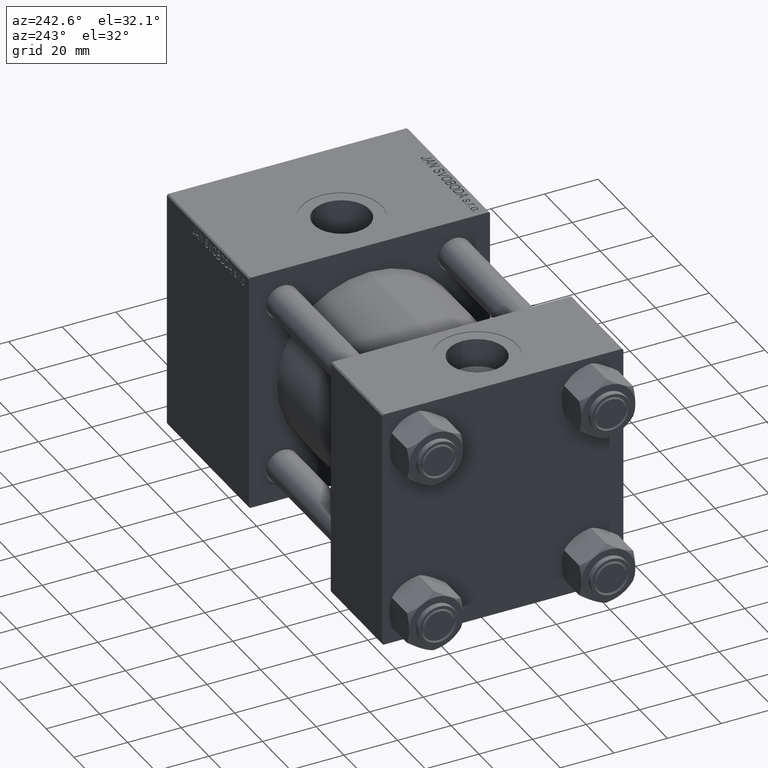
[diagram: clean part render]
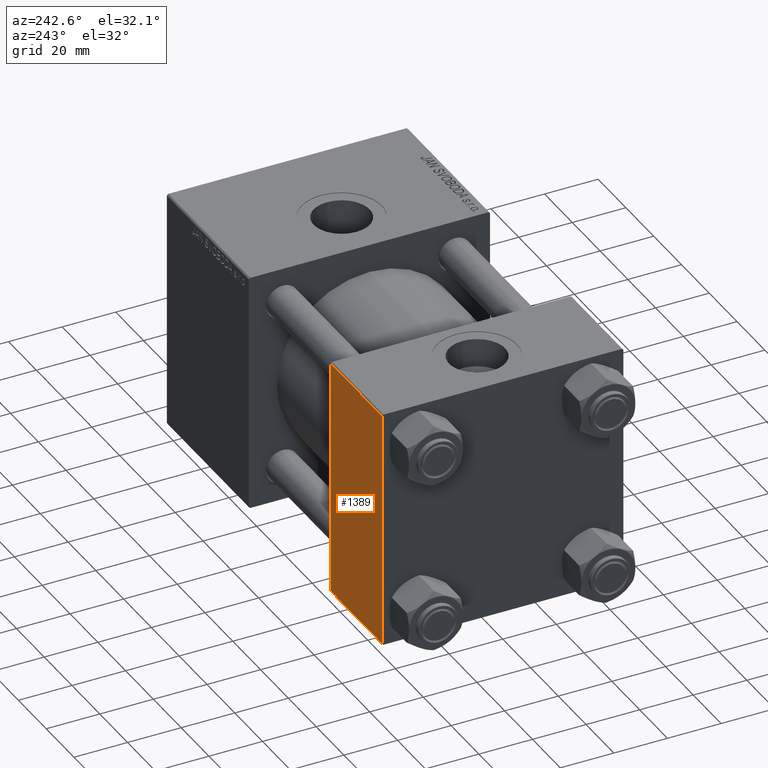
[diagram: same view with one face highlighted and labeled with its STEP entity id]
A machine part, auxiliary view. The second image highlights one B-rep face of the part: STEP entity #1389.
In plain terms, the highlighted planar face has unit normal (0, 1, 0).
Its self-contained STEP definition (entity closure, byte-faithful):
#520 = CARTESIAN_POINT ( 'NONE',  ( 0.000000000000000000, 44.99999999999998579, -44.49999999999995737 ) ) ;
#658 = EDGE_CURVE ( 'NONE', #10386, #49485, #23124, .T. ) ;
#1389 = ADVANCED_FACE ( 'NONE', ( #49045 ), #36963, .T. ) ;
#4246 = VERTEX_POINT ( 'NONE', #520 ) ;
#5933 = DIRECTION ( 'NONE',  ( -0.000000000000000000, 1.000000000000000000, 0.000000000000000000 ) ) ;
#6766 = ORIENTED_EDGE ( 'NONE', *, *, #39850, .T. ) ;
#6844 = ORIENTED_EDGE ( 'NONE', *, *, #39697, .T. ) ;
#8418 = CARTESIAN_POINT ( 'NONE',  ( 37.00000000000000000, 44.99999999999998579, -44.49999999999998579 ) ) ;
#8942 = VECTOR ( 'NONE', #27281, 1000.000000000000000 ) ;
#10386 = VERTEX_POINT ( 'NONE', #28532 ) ;
#10558 = CARTESIAN_POINT ( 'NONE',  ( 37.00000000000000000, 44.99999999999998579, 44.50000000000001421 ) ) ;
#11263 = LINE ( 'NONE', #14421, #8942 ) ;
#14237 = CARTESIAN_POINT ( 'NONE',  ( 0.000000000000000000, 44.99999999999998579, 44.50000000000001421 ) ) ;
#14421 = CARTESIAN_POINT ( 'NONE',  ( 0.000000000000000000, 44.99999999999998579, 45.00000000000001421 ) ) ;
#18268 = EDGE_CURVE ( 'NONE', #43011, #4246, #11263, .T. ) ;
#20772 = LINE ( 'NONE', #8418, #23297 ) ;
#21753 = ORIENTED_EDGE ( 'NONE', *, *, #18268, .F. ) ;
#21966 = DIRECTION ( 'NONE',  ( 0.000000000000000000, -0.000000000000000000, 1.000000000000000000 ) ) ;
#22859 = CARTESIAN_POINT ( 'NONE',  ( 37.00000000000000000, 44.99999999999998579, 45.00000000000001421 ) ) ;
#23124 = LINE ( 'NONE', #22859, #43698 ) ;
#23297 = VECTOR ( 'NONE', #44665, 1000.000000000000000 ) ;
#25136 = CARTESIAN_POINT ( 'NONE',  ( 37.00000000000000000, 44.99999999999998579, 45.00000000000001421 ) ) ;
#25210 = ORIENTED_EDGE ( 'NONE', *, *, #658, .T. ) ;
#27281 = DIRECTION ( 'NONE',  ( 0.000000000000000000, 0.000000000000000000, -1.000000000000000000 ) ) ;
#28532 = CARTESIAN_POINT ( 'NONE',  ( 37.00000000000000000, 44.99999999999998579, 44.50000000000001421 ) ) ;
#30229 = DIRECTION ( 'NONE',  ( 0.000000000000000000, 0.000000000000000000, -1.000000000000000000 ) ) ;
#36963 = PLANE ( 'NONE',  #40321 ) ;
#39697 = EDGE_CURVE ( 'NONE', #43011, #10386, #50990, .T. ) ;
#39850 = EDGE_CURVE ( 'NONE', #49485, #4246, #20772, .T. ) ;
#39912 = EDGE_LOOP ( 'NONE', ( #25210, #6766, #21753, #6844 ) ) ;
#40321 = AXIS2_PLACEMENT_3D ( 'NONE', #25136, #5933, #21966 ) ;
#43011 = VERTEX_POINT ( 'NONE', #14237 ) ;
#43116 = DIRECTION ( 'NONE',  ( 1.000000000000000000, 0.000000000000000000, 0.000000000000000000 ) ) ;
#43698 = VECTOR ( 'NONE', #30229, 1000.000000000000000 ) ;
#43770 = CARTESIAN_POINT ( 'NONE',  ( 37.00000000000000000, 44.99999999999998579, -44.49999999999995737 ) ) ;
#44665 = DIRECTION ( 'NONE',  ( -1.000000000000000000, 0.000000000000000000, 0.000000000000000000 ) ) ;
#45920 = VECTOR ( 'NONE', #43116, 1000.000000000000000 ) ;
#49045 = FACE_OUTER_BOUND ( 'NONE', #39912, .T. ) ;
#49485 = VERTEX_POINT ( 'NONE', #43770 ) ;
#50990 = LINE ( 'NONE', #10558, #45920 ) ;